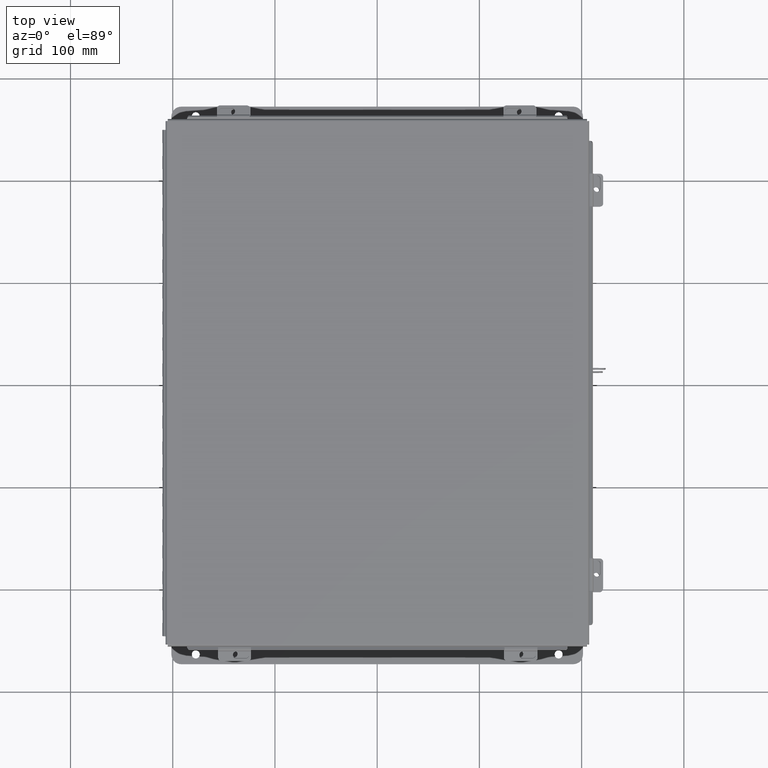
[diagram: clean part render]
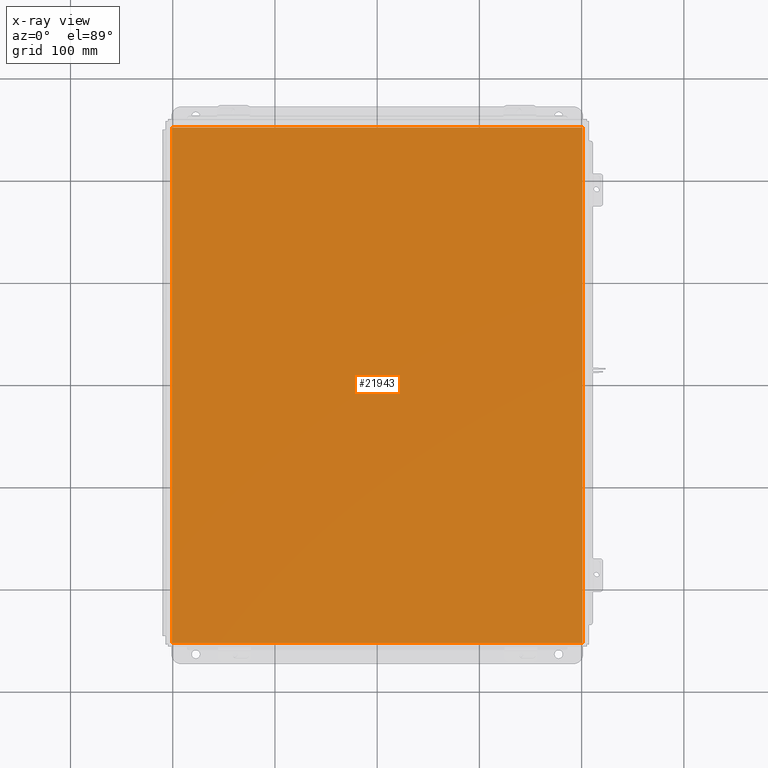
[diagram: x-ray — body ghosted, one internal face saturated and labeled with its STEP entity id]
A machine part, top view, then the same camera in x-ray: the body is ghosted and one INTERNAL B-rep face — a face not visible from any outside direction — is saturated and labeled: STEP entity #21943.
In plain terms, the highlighted planar face has unit normal (0, 0, -1).
Its self-contained STEP definition (entity closure, byte-faithful):
#472 = EDGE_LOOP ( 'NONE', ( #7661, #21652, #11553, #6173 ) ) ;
#1370 = CARTESIAN_POINT ( 'NONE',  ( 0.0000000000000000000, 0.0000000000000000000, 0.0000000000000000000 ) ) ;
#1514 = EDGE_CURVE ( 'NONE', #20720, #7282, #4365, .T. ) ;
#1649 = CARTESIAN_POINT ( 'NONE',  ( 7.912300000000002800, 9.925299999999992900, 4.268512490100411300E-017 ) ) ;
#1826 = VERTEX_POINT ( 'NONE', #1649 ) ;
#2036 = CARTESIAN_POINT ( 'NONE',  ( -7.999999999999996400, -9.925299999999998200, 0.0000000000000000000 ) ) ;
#4128 = VECTOR ( 'NONE', #15017, 39.37007874015748100 ) ;
#4187 = LINE ( 'NONE', #2036, #8195 ) ;
#4365 = LINE ( 'NONE', #6471, #21692 ) ;
#4663 = LINE ( 'NONE', #11511, #4128 ) ;
#4836 = DIRECTION ( 'NONE',  ( 0.0000000000000000000, 0.0000000000000000000, -1.000000000000000000 ) ) ;
#5258 = EDGE_CURVE ( 'NONE', #1826, #12514, #21535, .T. ) ;
#6173 = ORIENTED_EDGE ( 'NONE', *, *, #6274, .T. ) ;
#6263 = CARTESIAN_POINT ( 'NONE',  ( 7.912300000000002800, -9.925300000000000000, 4.268512490100411300E-017 ) ) ;
#6274 = EDGE_CURVE ( 'NONE', #20720, #12514, #4187, .T. ) ;
#6471 = CARTESIAN_POINT ( 'NONE',  ( -7.912299999999996600, -9.925299999999998200, -1.314701846950926700E-015 ) ) ;
#7110 = CARTESIAN_POINT ( 'NONE',  ( -7.912299999999996600, -9.925299999999998200, -1.314701846950926700E-015 ) ) ;
#7126 = FACE_OUTER_BOUND ( 'NONE', #472, .T. ) ;
#7282 = VERTEX_POINT ( 'NONE', #12441 ) ;
#7661 = ORIENTED_EDGE ( 'NONE', *, *, #5258, .F. ) ;
#8195 = VECTOR ( 'NONE', #19349, 39.37007874015748100 ) ;
#9092 = AXIS2_PLACEMENT_3D ( 'NONE', #1370, #4836, #16917 ) ;
#9942 = PLANE ( 'NONE',  #9092 ) ;
#11511 = CARTESIAN_POINT ( 'NONE',  ( -7.999999999999996400, 9.925299999999998200, 0.0000000000000000000 ) ) ;
#11553 = ORIENTED_EDGE ( 'NONE', *, *, #1514, .F. ) ;
#12441 = CARTESIAN_POINT ( 'NONE',  ( -7.912299999999996600, 9.925299999999998200, 3.158699242674304400E-016 ) ) ;
#12514 = VERTEX_POINT ( 'NONE', #6263 ) ;
#15017 = DIRECTION ( 'NONE',  ( -1.000000000000000000, -0.0000000000000000000, -0.0000000000000000000 ) ) ;
#16480 = CARTESIAN_POINT ( 'NONE',  ( 7.912300000000002800, 9.925299999999996500, 4.268512490100411300E-017 ) ) ;
#16917 = DIRECTION ( 'NONE',  ( -1.000000000000000000, 0.0000000000000000000, -0.0000000000000000000 ) ) ;
#17948 = DIRECTION ( 'NONE',  ( -0.0000000000000000000, 1.000000000000000000, 8.208677865577646300E-017 ) ) ;
#19349 = DIRECTION ( 'NONE',  ( 1.000000000000000000, -1.365923996832131600E-016, 0.0000000000000000000 ) ) ;
#19907 = VECTOR ( 'NONE', #20228, 39.37007874015748100 ) ;
#20228 = DIRECTION ( 'NONE',  ( -0.0000000000000000000, -1.000000000000000000, -0.0000000000000000000 ) ) ;
#20720 = VERTEX_POINT ( 'NONE', #7110 ) ;
#21535 = LINE ( 'NONE', #16480, #19907 ) ;
#21652 = ORIENTED_EDGE ( 'NONE', *, *, #21858, .T. ) ;
#21692 = VECTOR ( 'NONE', #17948, 39.37007874015748100 ) ;
#21858 = EDGE_CURVE ( 'NONE', #1826, #7282, #4663, .T. ) ;
#21943 = ADVANCED_FACE ( 'NONE', ( #7126 ), #9942, .F. ) ;